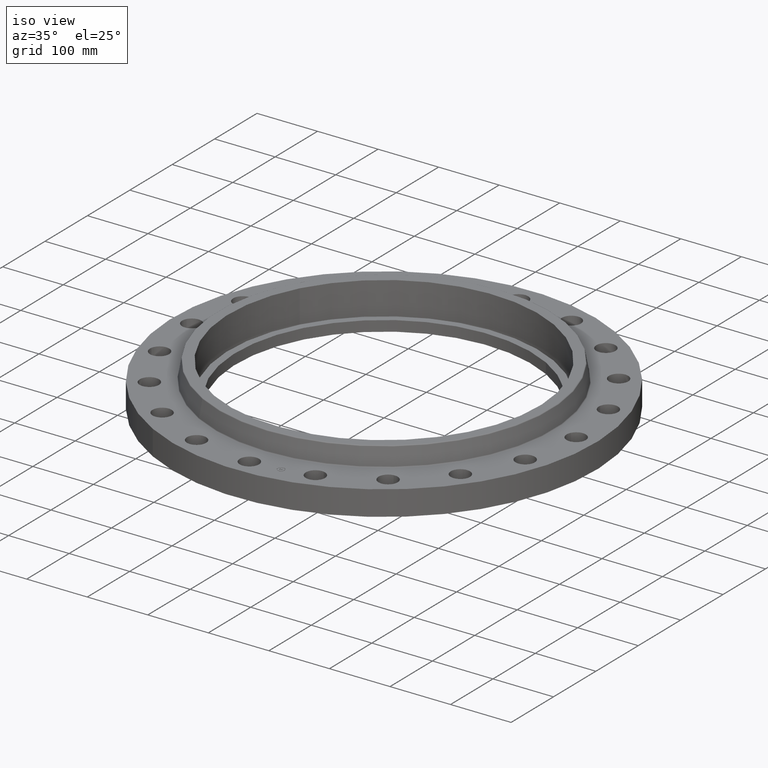
[diagram: clean part render]
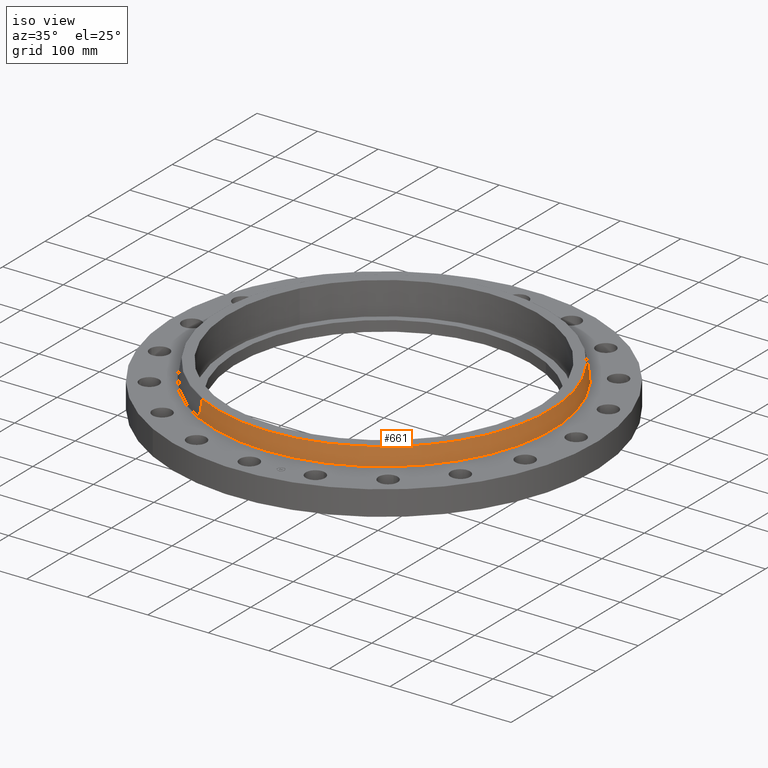
[diagram: same view with one face highlighted and labeled with its STEP entity id]
A machine part, iso view. The second image highlights one B-rep face of the part: STEP entity #661.
In plain terms, the highlighted conical surface has half-angle 10 deg.
Its self-contained STEP definition (entity closure, byte-faithful):
#597=AXIS2_PLACEMENT_3D('Circle Axis2P3D',#595,#596,$) ;
#634=AXIS2_PLACEMENT_3D('Cone Axis2P3D',#631,#632,#633) ;
#645=AXIS2_PLACEMENT_3D('Circle Axis2P3D',#643,#644,$) ;
#592=CARTESIAN_POINT('Vertex',(5.26948955298,9.64573592642,1.66958110935)) ;
#595=CARTESIAN_POINT('Axis2P3D Location',(0.,0.,1.66958110935)) ;
#599=CARTESIAN_POINT('Vertex',(-5.26948955298,-9.64573592642,1.66958110935)) ;
#631=CARTESIAN_POINT('Axis2P3D Location',(0.,0.,2.76041889067)) ;
#636=CARTESIAN_POINT('Line Origine',(5.22338220834,9.56133699817,2.21500000001)) ;
#640=CARTESIAN_POINT('Vertex',(5.1772748637,9.47693806992,2.76041889067)) ;
#643=CARTESIAN_POINT('Axis2P3D Location',(0.,0.,2.76041889067)) ;
#647=CARTESIAN_POINT('Vertex',(-5.1772748637,-9.47693806992,2.76041889067)) ;
#650=CARTESIAN_POINT('Line Origine',(-5.22338220834,-9.56133699817,2.21500000001)) ;
#596=DIRECTION('Axis2P3D Direction',(0.,0.,-0.0393700787402)) ;
#632=DIRECTION('Axis2P3D Direction',(0.,0.,-0.0393700787402)) ;
#633=DIRECTION('Axis2P3D XDirection',(-0.0188750212049,-0.0345504945626,0.)) ;
#637=DIRECTION('Vector Direction',(0.00327761303565,0.00599963041829,-0.03877195878)) ;
#644=DIRECTION('Axis2P3D Direction',(0.,0.,-0.0393700787402)) ;
#651=DIRECTION('Vector Direction',(-0.00327761303565,-0.00599963041829,-0.03877195878)) ;
#638=VECTOR('Line Direction',#637,0.0393700787402) ;
#652=VECTOR('Line Direction',#651,0.0393700787402) ;
#656=ORIENTED_EDGE('',*,*,#601,.F.) ;
#657=ORIENTED_EDGE('',*,*,#642,.T.) ;
#658=ORIENTED_EDGE('',*,*,#649,.T.) ;
#659=ORIENTED_EDGE('',*,*,#654,.F.) ;
#661=ADVANCED_FACE('PartBody',(#660),#635,.T.) ;
#598=CIRCLE('generated circle',#597,10.9912575127) ;
#646=CIRCLE('generated circle',#645,10.7989133803) ;
#635=CONICAL_SURFACE('Cone',#634,10.7989133803,0.174532925199) ;
#601=EDGE_CURVE('',#593,#600,#598,.T.) ;
#642=EDGE_CURVE('',#593,#641,#639,.F.) ;
#649=EDGE_CURVE('',#641,#648,#646,.T.) ;
#654=EDGE_CURVE('',#600,#648,#653,.F.) ;
#655=EDGE_LOOP('',(#656,#657,#658,#659)) ;
#660=FACE_OUTER_BOUND('',#655,.T.) ;
#639=LINE('Line',#636,#638) ;
#653=LINE('Line',#650,#652) ;
#593=VERTEX_POINT('',#592) ;
#600=VERTEX_POINT('',#599) ;
#641=VERTEX_POINT('',#640) ;
#648=VERTEX_POINT('',#647) ;